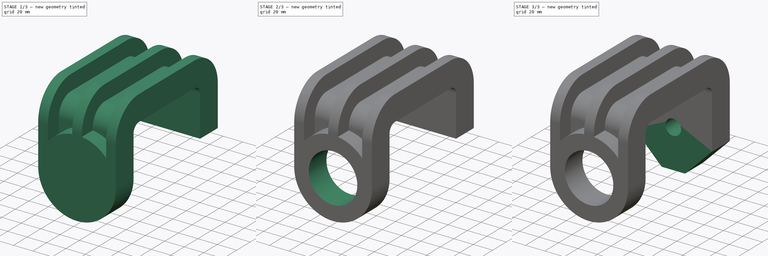
[diagram: build sequence overview — one tinted view per stage of 3, left to right]
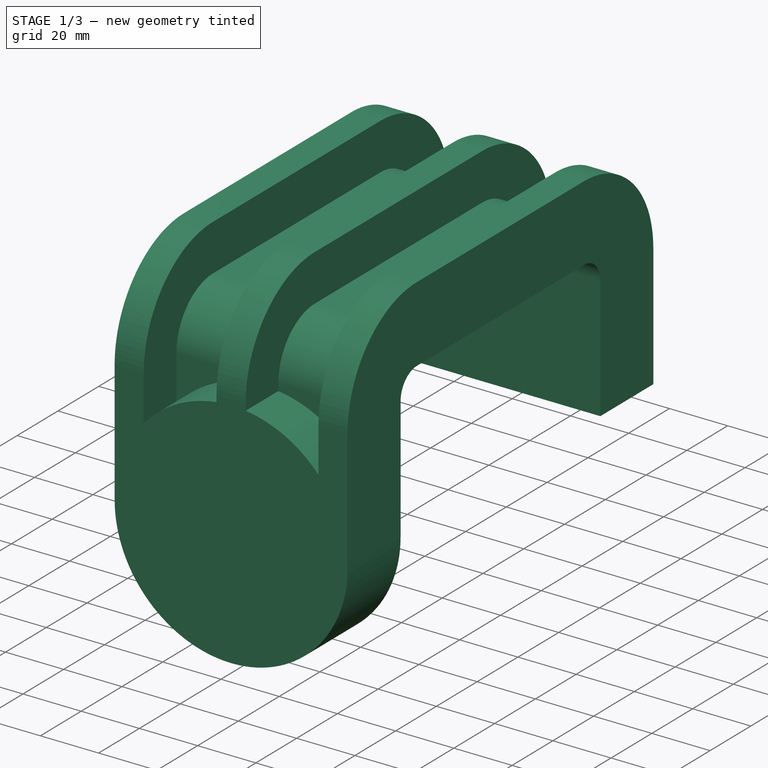
[diagram: stage 1 of 3 — iso view after this stage's code; geometry added in this stage tinted green]
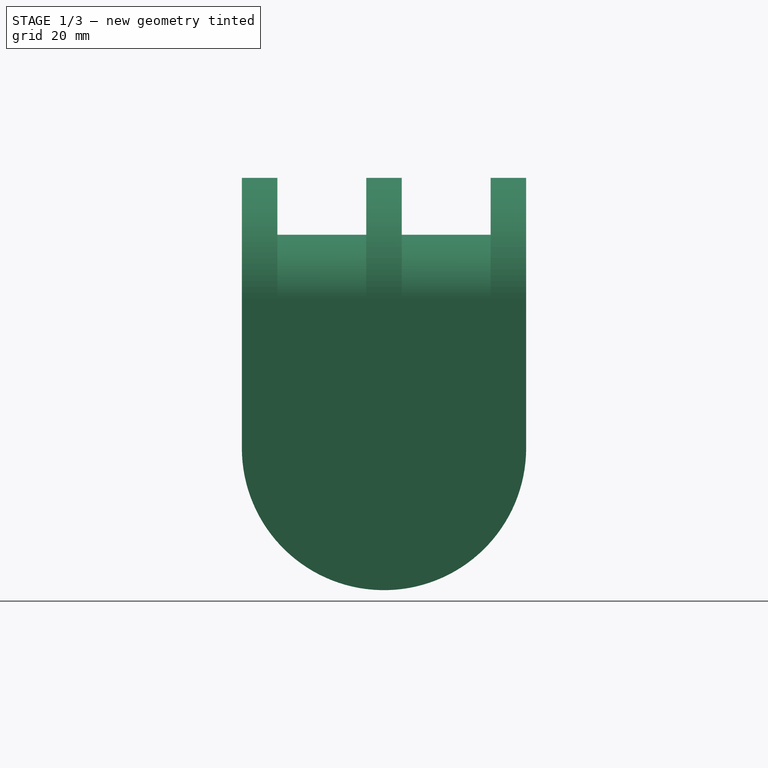
[diagram: stage 1 of 3 — front view after this stage's code; geometry added in this stage tinted green]
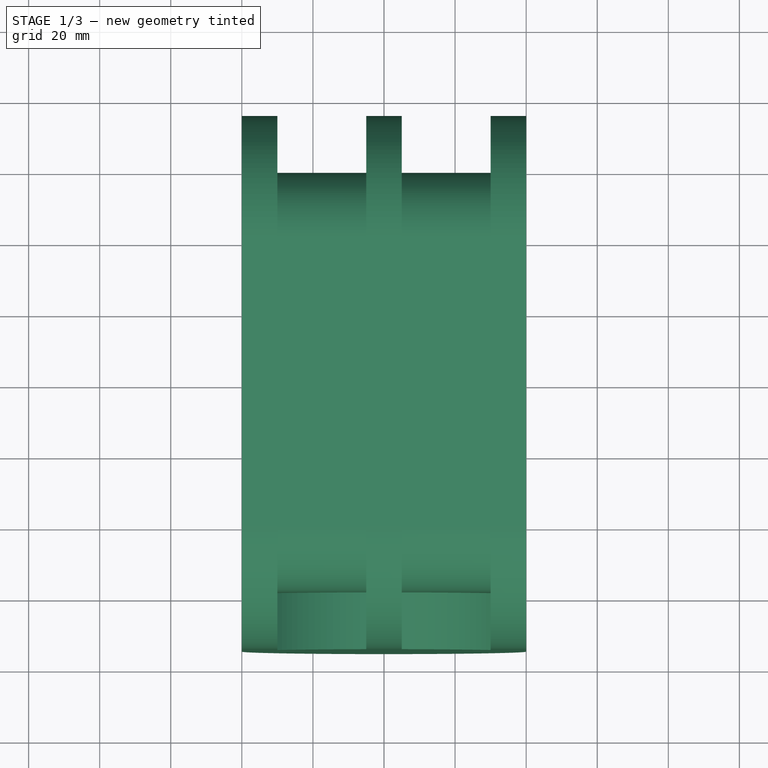
[diagram: stage 1 of 3 — top view after this stage's code; geometry added in this stage tinted green]
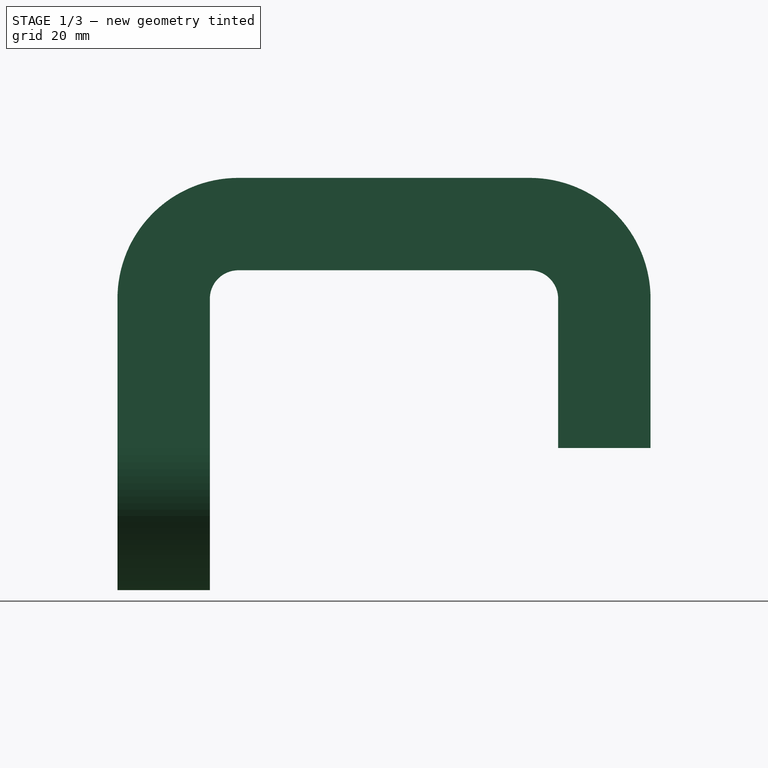
[diagram: stage 1 of 3 — right view after this stage's code; geometry added in this stage tinted green]
FCSTD DOCUMENT  (FreeCAD 1.1R42180 (Git))
Label: 24WC-23-Hinge_Bracket
License: Creative Commons Attribution-NonCommercial-ShareAlike 4.0
LicenseURL: https://creativecommons.org/licenses/by-nc-sa/4.0/
objects: Sketcher::SketchObject×5, PartDesign::Pad×2, PartDesign::Pocket×2, App::Point×1, PartDesign::AdditivePipe×1, PartDesign::Body×1, App::TextDocument×1
note: 26 computed .brp shape members not serialized (recipe doc carries the construction recipe); baked Part::Feature solids carry a one-line shape summary decoded from their .brp

FEATURE [App::Point] Origin001  label="Origine"
  Role = Origin
FEATURE [Sketcher::SketchObject] Sketch  label="Path"
  ArcFitTolerance = 1e-06
  AttachmentSupport = -> [Origin]
  ExternalTypes = [0]
  FullyConstrained = true
  MakeInternals = false
  MapMode = 5
  Placement = pos=(0,0,0) rot=(0.57735,0.57735,0.57735;2.0944rad)
  sketch-geometry (5):
    g0: LineSegment StartX=-75 StartY=0 StartZ=0 EndX=-75 EndY=42 EndZ=0
    g1: ArcOfCircle CenterX=-41 CenterY=42 CenterZ=0 NormalX=0 NormalY=0 NormalZ=1 AngleXU=0 Radius=34 StartAngle=1.5708 EndAngle=3.14159
    g2: LineSegment StartX=-41 StartY=76 StartZ=0 EndX=41 EndY=76 EndZ=0
    g3: ArcOfCircle CenterX=41 CenterY=42 CenterZ=0 NormalX=0 NormalY=0 NormalZ=1 AngleXU=0 Radius=34 StartAngle=2e-16 EndAngle=1.5708
    g4: LineSegment StartX=75 StartY=42 StartZ=0 EndX=75 EndY=0 EndZ=0
  constraints (13):
    c: PointOnObject(g0,g-1)
    c: Vertical(g0)
    c: Tangent(g0,g1) = 1.5708
    c: Tangent(g1,g2) = 1.5708
    c: Tangent(g2,g3) = 1.5708
    c: Tangent(g3,g4) = 1.5708
    c: Horizontal(g2)
    c: Vertical(g4)
    c: Symmetric(g3,g1,g-2)
    c: Radius(g3) = 34
    c: DistanceX(g0,g4) = 150
    c: Distance(g2,g-1) = 76
    c: PointOnObject(g4,g-1)
FEATURE [Sketcher::SketchObject] Sketch001
  ArcFitTolerance = 1e-06
  AttachmentSupport = -> [Origin]
  ExternalGeometry = -> [Sketch]
  ExternalTypes = [0]
  FullyConstrained = true
  MakeInternals = false
  MapMode = 5
  sketch-geometry (12):
    g0: LineSegment StartX=-40 StartY=49 StartZ=0 EndX=40 EndY=49 EndZ=0
    g1: LineSegment StartX=40 StartY=49 StartZ=0 EndX=40 EndY=75 EndZ=0
    g2: LineSegment StartX=40 StartY=75 StartZ=0 EndX=30 EndY=75 EndZ=0
    g3: LineSegment StartX=30 StartY=75 StartZ=0 EndX=30 EndY=59 EndZ=0
    g4: LineSegment StartX=30 StartY=59 StartZ=0 EndX=5 EndY=59 EndZ=0
    g5: LineSegment StartX=5 StartY=59 StartZ=0 EndX=5 EndY=75 EndZ=0
    g6: LineSegment StartX=5 StartY=75 StartZ=0 EndX=-5 EndY=75 EndZ=0
    g7: LineSegment StartX=-5 StartY=75 StartZ=0 EndX=-5 EndY=59 EndZ=0
    g8: LineSegment StartX=-5 StartY=59 StartZ=0 EndX=-30 EndY=59 EndZ=0
    g9: LineSegment StartX=-30 StartY=59 StartZ=0 EndX=-30 EndY=75 EndZ=0
    g10: LineSegment StartX=-30 StartY=75 StartZ=0 EndX=-40 EndY=75 EndZ=0
    g11: LineSegment StartX=-40 StartY=75 StartZ=0 EndX=-40 EndY=49 EndZ=0
  constraints (35):
    c: Horizontal(g0)
    c: Coincident(g0,g1)
    c: Vertical(g1)
    c: Coincident(g1,g2)
    c: Coincident(g2,g3)
    c: Coincident(g3,g4)
    c: Horizontal(g4)
    c: Coincident(g4,g5)
    c: Vertical(g5)
    c: Coincident(g5,g6)
    c: Horizontal(g6)
    c: Coincident(g6,g7)
    c: Vertical(g7)
    c: Coincident(g7,g8)
    c: Coincident(g8,g9)
    c: Vertical(g9)
    c: Coincident(g9,g10)
    c: Coincident(g10,g11)
    c: Coincident(g11,g0)
    c: Vertical(g11)
    c: Horizontal(g10)
    c: Horizontal(g2)
    c: Vertical(g3)
    c: Horizontal(g8)
    c: Horizontal(g9,g6)
    c: Horizontal(g6,g2)
    c: Distance(g2,g2) = 10
    c: Equal(g2,g6)
    c: Equal(g10,g6)
    c: Equal(g8,g4)
    c: Symmetric(g7,g4,g-2)
    c: DistanceX(g0,g0) = 80
    c: PointOnObject(g-3,g6)
    c: Distance(g3,g0) = 10
    c: DistanceY(g1,g1) = 26
FEATURE [PartDesign::AdditivePipe] AdditivePipe
  AuxiliaryCurvilinear = true
  AuxiliarySpineTangent = false
  Binormal = (0,0,0)
  Mode = 0
  Profile = -> Sketch001
  Refine = true
  Spine = -> Sketch
  SpineTangent = false
  Suppressed = false
  Transformation = 0
  Transition = 0
FEATURE [Sketcher::SketchObject] Sketch002
  ArcFitTolerance = 1e-06
  AttachmentSupport = -> [AdditivePipe]
  ExternalGeometry = -> [AdditivePipe]
  ExternalTypes = [0]
  FullyConstrained = true
  MakeInternals = false
  MapMode = 5
  Placement = pos=(0,-75,0) rot=(1,0,0;1.5708rad)
  sketch-geometry (2):
    g0: Circle CenterX=0 CenterY=0 CenterZ=0 NormalX=0 NormalY=0 NormalZ=1 AngleXU=0 Radius=25
    g1: Circle CenterX=0 CenterY=0 CenterZ=0 NormalX=0 NormalY=0 NormalZ=1 AngleXU=0 Radius=40
  constraints (4):
    c: Diameter(g0) = 50
    c: Coincident(g0,g-1)
    c: Coincident(g1,g0)
    c: PointOnObject(g-3,g1)
FEATURE [PartDesign::Pad] Pad
  BaseFeature = -> AdditivePipe
  Direction = (0,-1,0)
  Length = 10
  Length2 = 10
  Profile = -> Sketch002 [Edge2]
  ReferenceAxis = -> Sketch002 [N_Axis]
  Refine = true
  Suppressed = false
  Type = 3
  UpToFace = -> AdditivePipe [Face2]
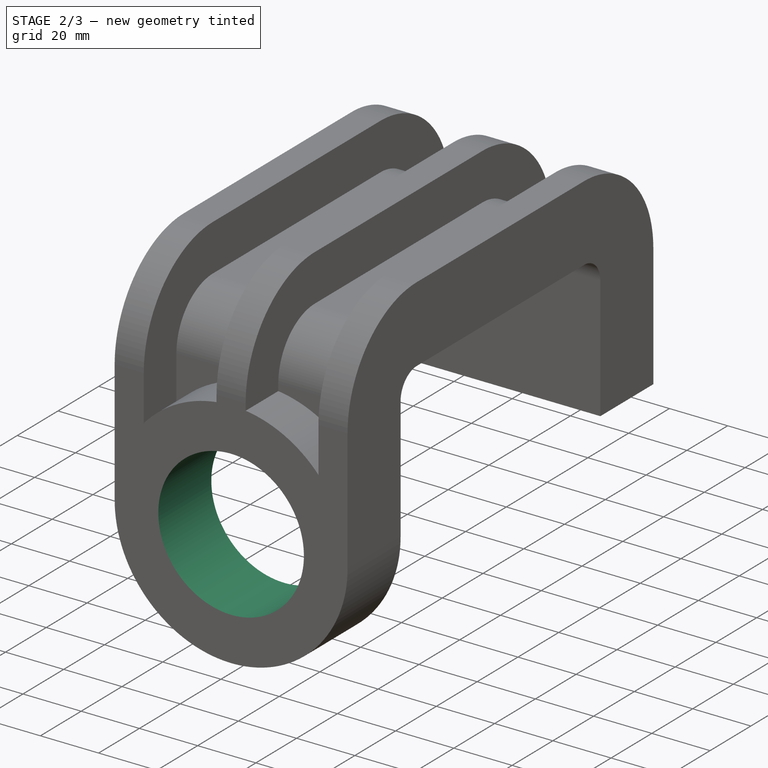
[diagram: stage 2 of 3 — iso view after this stage's code; geometry added in this stage tinted green]
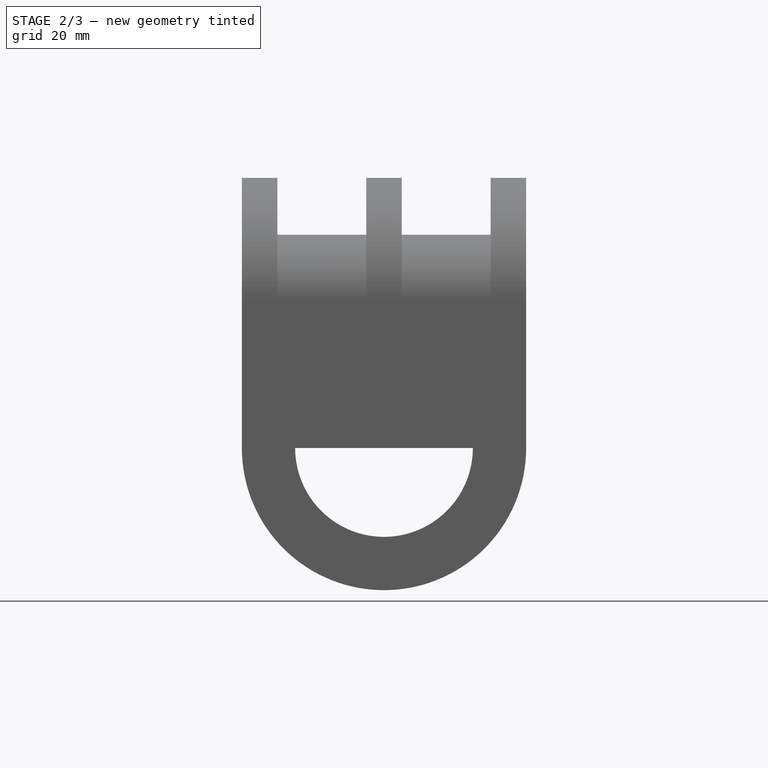
[diagram: stage 2 of 3 — front view after this stage's code; geometry added in this stage tinted green]
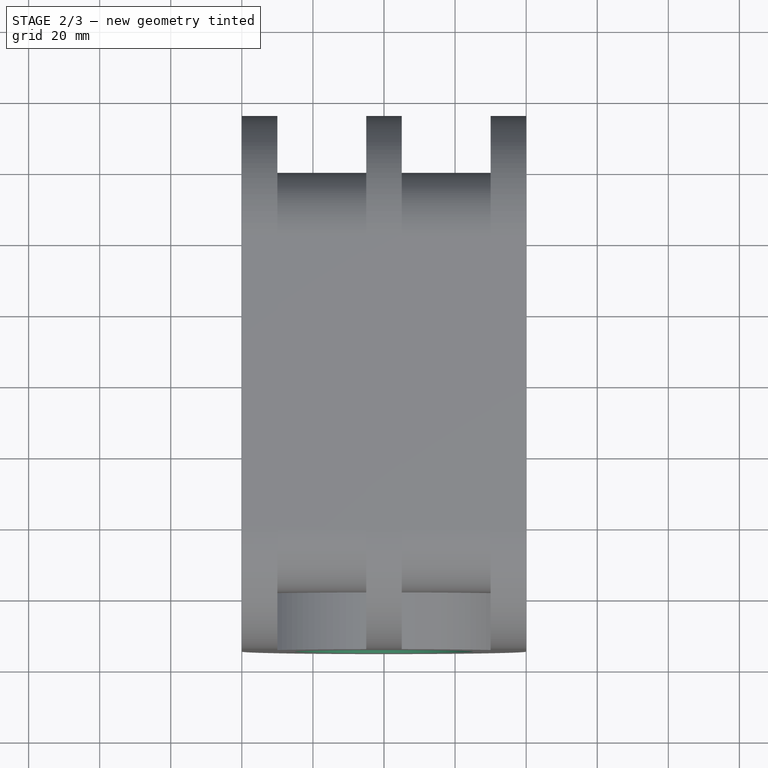
[diagram: stage 2 of 3 — top view after this stage's code; geometry added in this stage tinted green]
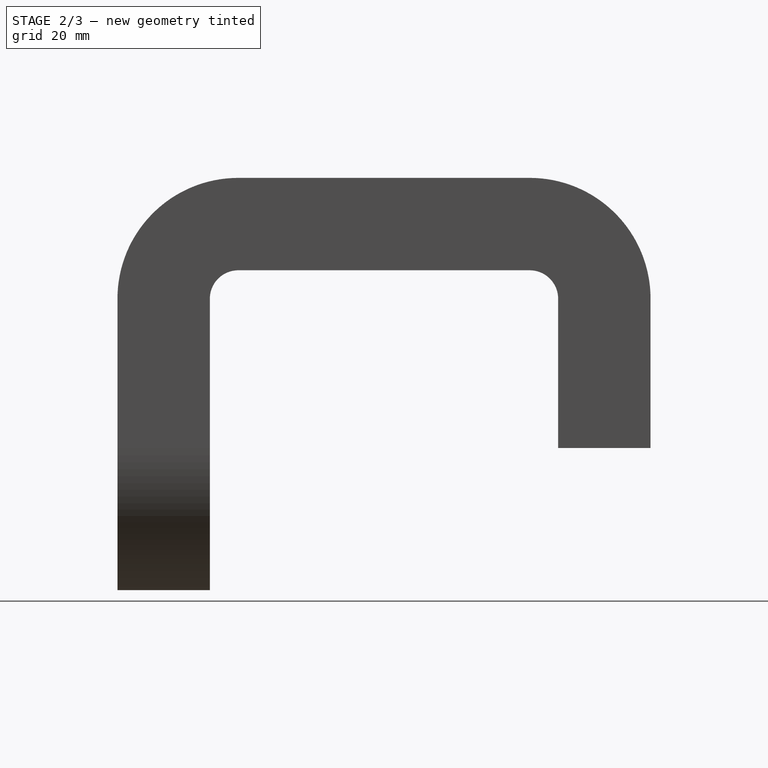
[diagram: stage 2 of 3 — right view after this stage's code; geometry added in this stage tinted green]
FEATURE [PartDesign::Pocket] Pocket
  BaseFeature = -> Pad
  Direction = (0,1,0)
  Length = 0
  Length2 = 5
  Profile = -> Sketch002 [Edge1]
  ReferenceAxis = -> Sketch002 [N_Axis]
  Refine = true
  Suppressed = false
  Type = 3
  UpToFace = -> Pad [Face37]
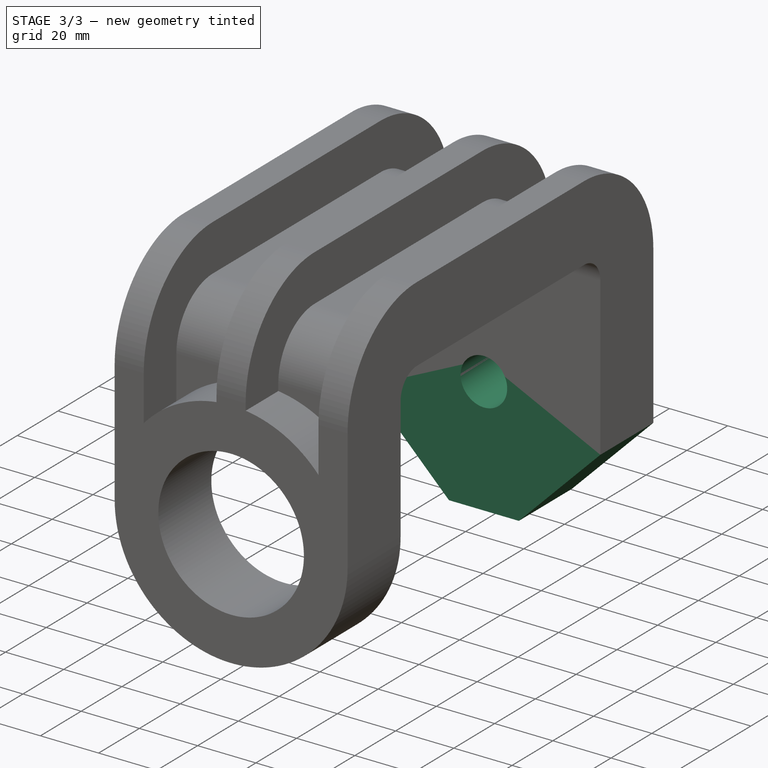
[diagram: stage 3 of 3 — iso view after this stage's code; geometry added in this stage tinted green]
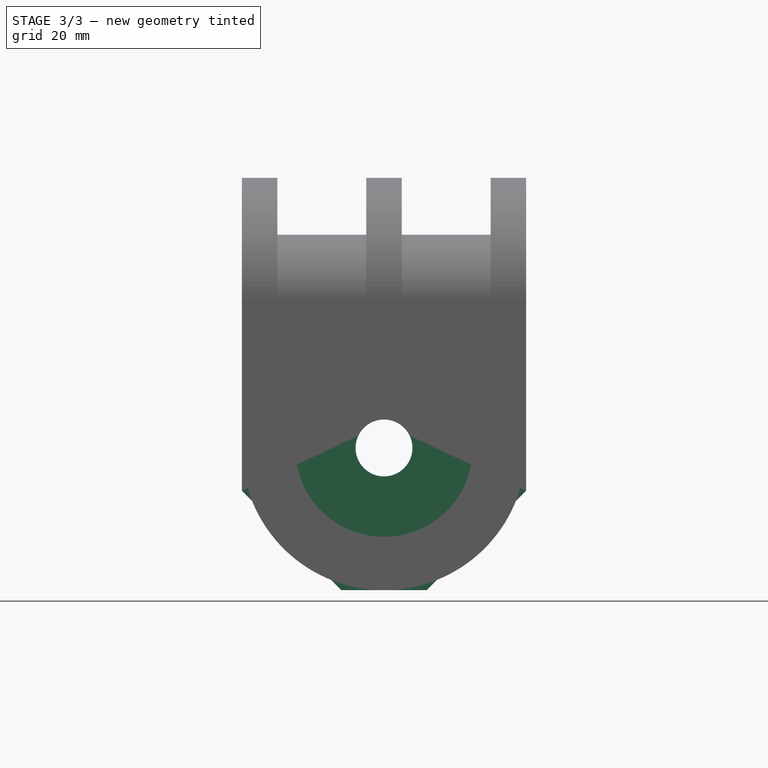
[diagram: stage 3 of 3 — front view after this stage's code; geometry added in this stage tinted green]
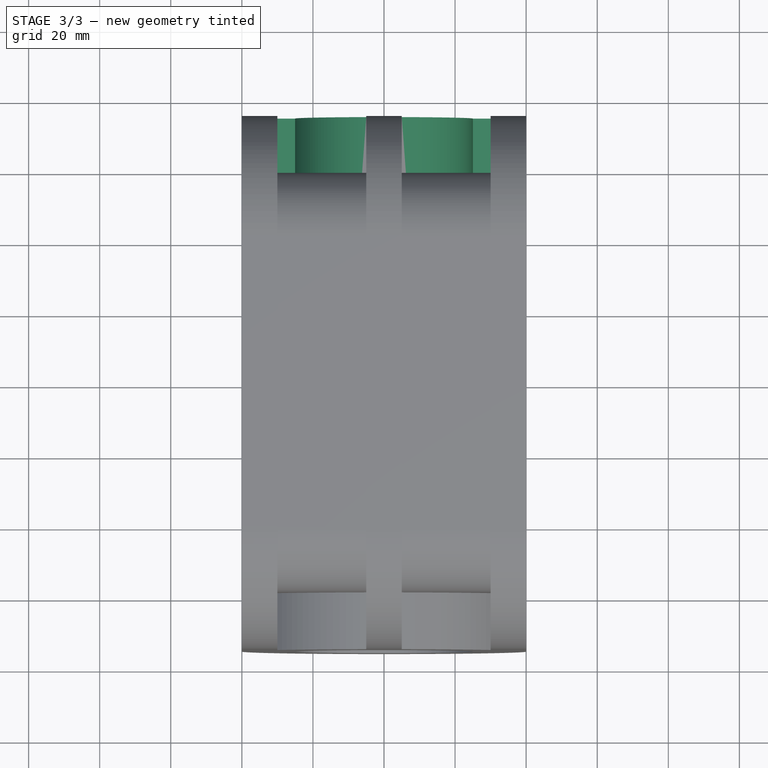
[diagram: stage 3 of 3 — top view after this stage's code; geometry added in this stage tinted green]
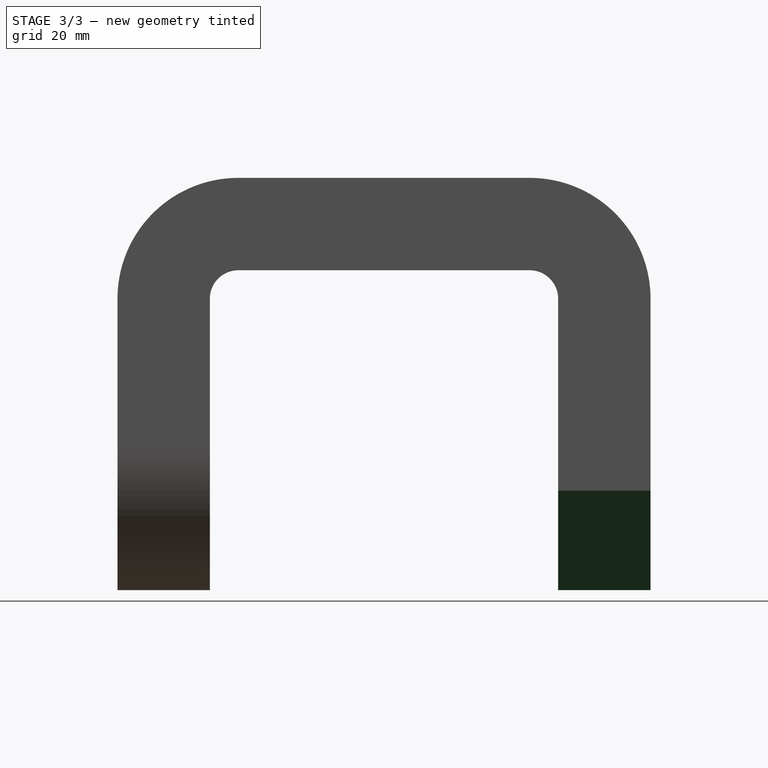
[diagram: stage 3 of 3 — right view after this stage's code; geometry added in this stage tinted green]
FEATURE [Sketcher::SketchObject] Sketch003
  ArcFitTolerance = 1e-06
  AttachmentSupport = -> [Pocket]
  ExternalGeometry = -> [Pocket]
  ExternalTypes = [0]
  FullyConstrained = true
  MakeInternals = false
  MapMode = 5
  Placement = pos=(0,49,0) rot=(1,0,0;1.5708rad)
  sketch-geometry (8):
    g0: LineSegment StartX=40 StartY=0 StartZ=0 EndX=40 EndY=-12 EndZ=0
    g1: LineSegment StartX=40 StartY=-12 StartZ=0 EndX=12 EndY=-40 EndZ=0
    g2: LineSegment StartX=12 StartY=-40 StartZ=0 EndX=-12 EndY=-40 EndZ=0
    g3: LineSegment StartX=-12 StartY=-40 StartZ=0 EndX=-40 EndY=-12 EndZ=0
    g4: LineSegment StartX=-40 StartY=-12 StartZ=0 EndX=-40 EndY=0 EndZ=0
    g5: LineSegment StartX=-40 StartY=0 StartZ=0 EndX=-25 EndY=0 EndZ=0
    g6: ArcOfCircle CenterX=0 CenterY=0 CenterZ=0 NormalX=0 NormalY=0 NormalZ=1 AngleXU=0 Radius=25 StartAngle=0 EndAngle=3.14159
    g7: LineSegment StartX=25 StartY=0 StartZ=0 EndX=40 EndY=0 EndZ=0
  constraints (22):
    c: Coincident(g-3,g0)
    c: Vertical(g0)
    c: Coincident(g0,g1)
    c: Coincident(g1,g2)
    c: Coincident(g2,g3)
    c: Coincident(g3,g4)
    c: Vertical(g4)
    c: Coincident(g4,g5)
    c: Coincident(g7,g0)
    c: Distance(g1,g-1) = 40
    c: DistanceX(g1,g0) = 28
    c: Angle(g1,g-2) = 0.785398
    c: Equal(g0,g4)
    c: Equal(g3,g1)
    c: Symmetric(g2,g1,g-2)
    c: Coincident(g6,g-1)
    c: Radius(g6) = 25
    c: Horizontal(g5)
    c: Horizontal(g7)
    c: Coincident(g6,g5)
    c: Coincident(g6,g7)
    c: PointOnObject(g5,g-1)
FEATURE [PartDesign::Pad] Pad001
  BaseFeature = -> Pocket
  Direction = (0,-1,2e-16)
  Length = 10
  Length2 = 10
  Profile = -> Sketch003
  ReferenceAxis = -> Sketch003 [N_Axis]
  Refine = true
  Reversed = true
  Suppressed = false
  Type = 3
  UpToFace = -> Pocket [Face26]
FEATURE [Sketcher::SketchObject] Sketch004
  ArcFitTolerance = 1e-06
  AttachmentSupport = -> [Pad001]
  ExternalTypes = [0]
  FullyConstrained = false
  MakeInternals = false
  MapMode = 5
  Placement = pos=(0,75,0) rot=(0,0.707107,0.707107;3.14159rad)
  sketch-geometry (1):
    g0: Circle CenterX=0 CenterY=0 CenterZ=0 NormalX=0 NormalY=0 NormalZ=1 AngleXU=0 Radius=8
  constraints (1):
    c: Diameter(g0) = 16
FEATURE [PartDesign::Pocket] Pocket001
  BaseFeature = -> Pad001
  Direction = (0,-1,0)
  Length = 5
  Length2 = 5
  Profile = -> Sketch004
  ReferenceAxis = -> Sketch004 [N_Axis]
  Refine = true
  Suppressed = false
  Type = 2
FEATURE [PartDesign::Body] Body
  AllowCompound = true
  Group = -> [Sketch,Sketch001,AdditivePipe,Sketch002,Pad,Pocket,Sketch003,Pad001,Sketch004,Pocket001]
  Origin = -> Origin
  Tip = -> Pocket001
FEATURE [App::TextDocument] Text_document  label="README"
  Text = https://www.youtube.com/watch?v=2vFTVAz_uM4\n\n1020 kg/m3\n\n.4039 kg  GOOD!
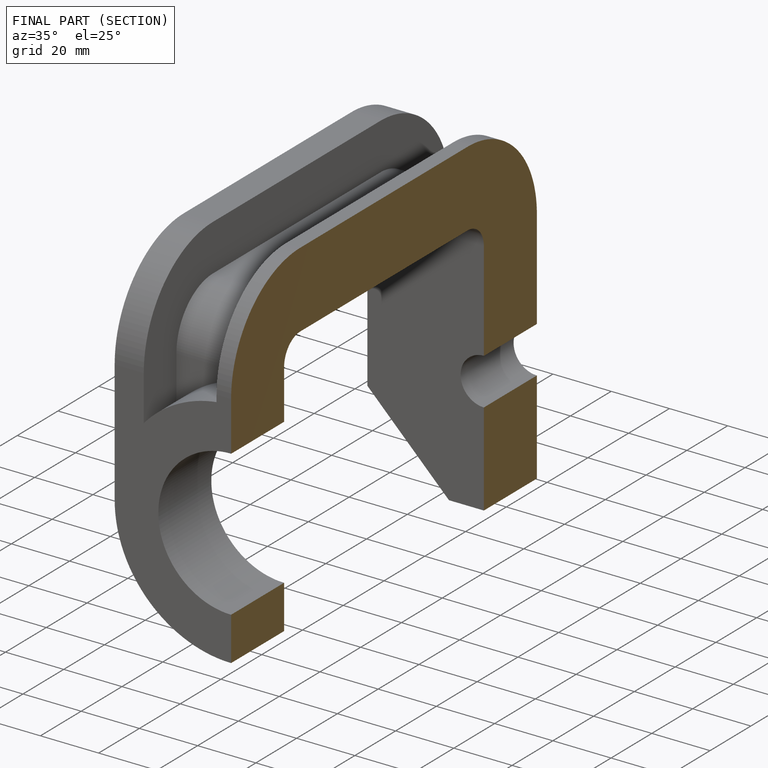
[diagram: finished part — half-section view (interior)]
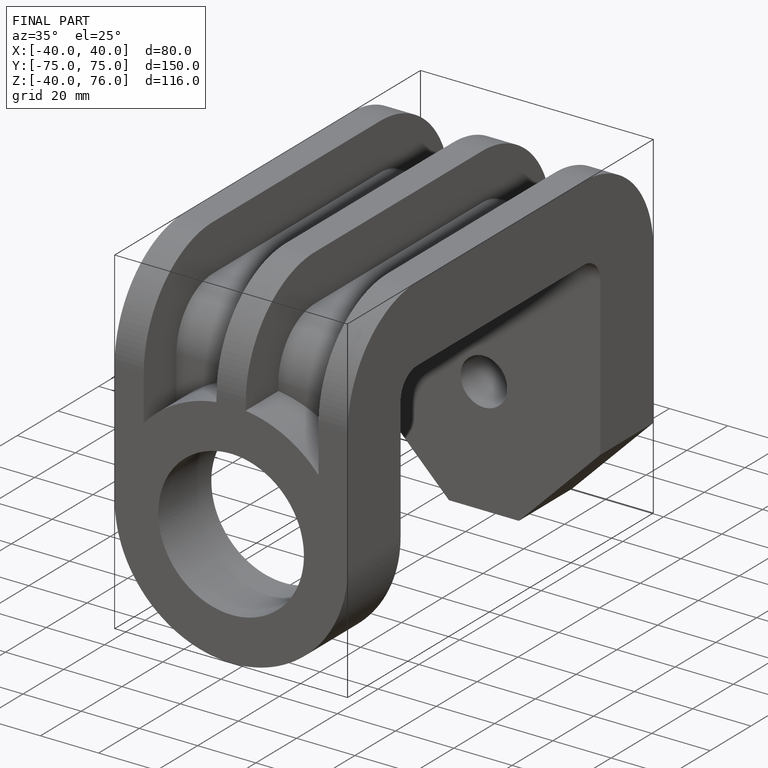
[diagram: finished part — iso view with bounding-box wireframe]
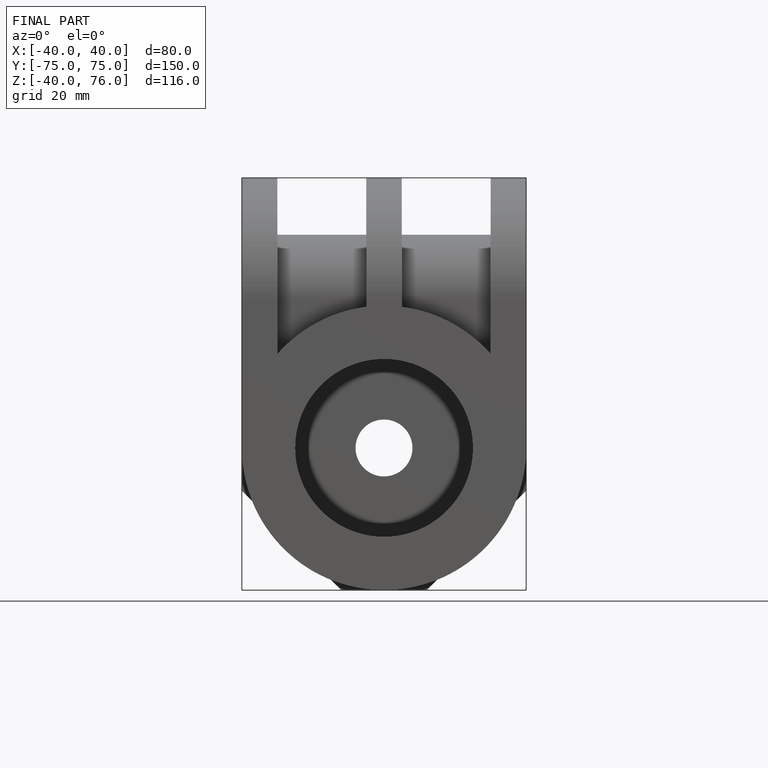
[diagram: finished part — front view with bounding-box wireframe]
